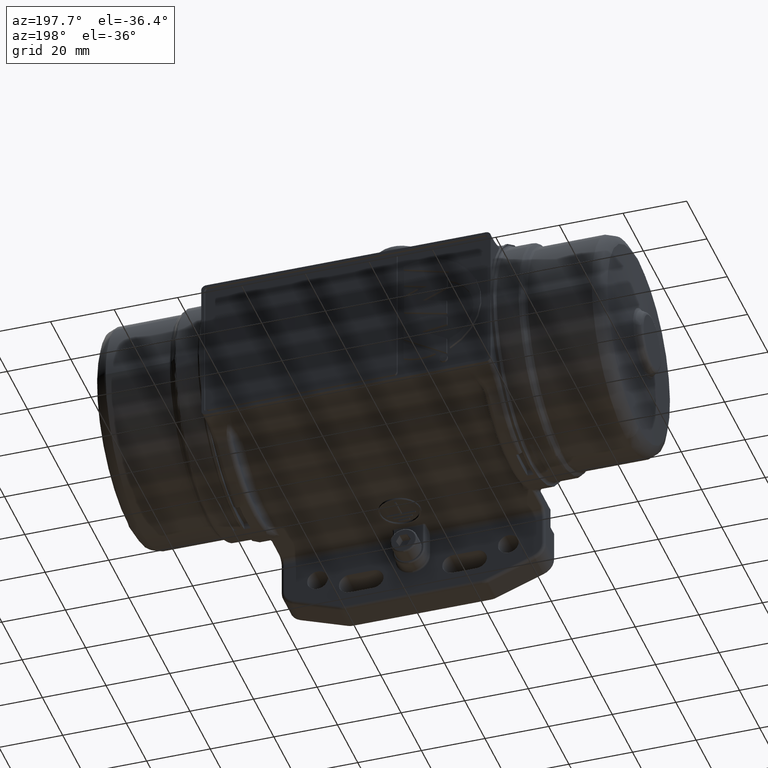
[diagram: clean part render]
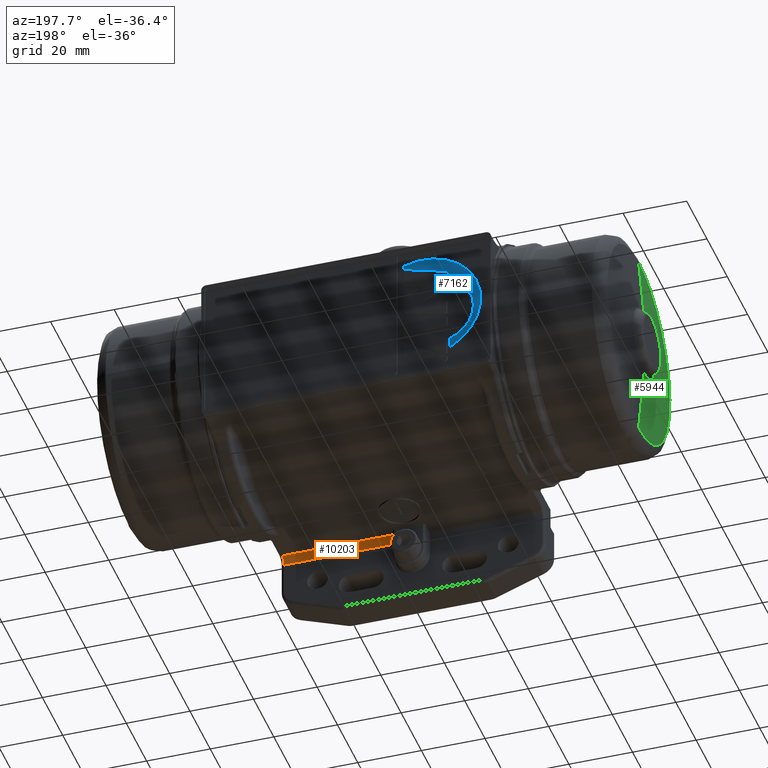
[diagram: same view with three faces highlighted in distinct colors, each labeled with its STEP entity id]
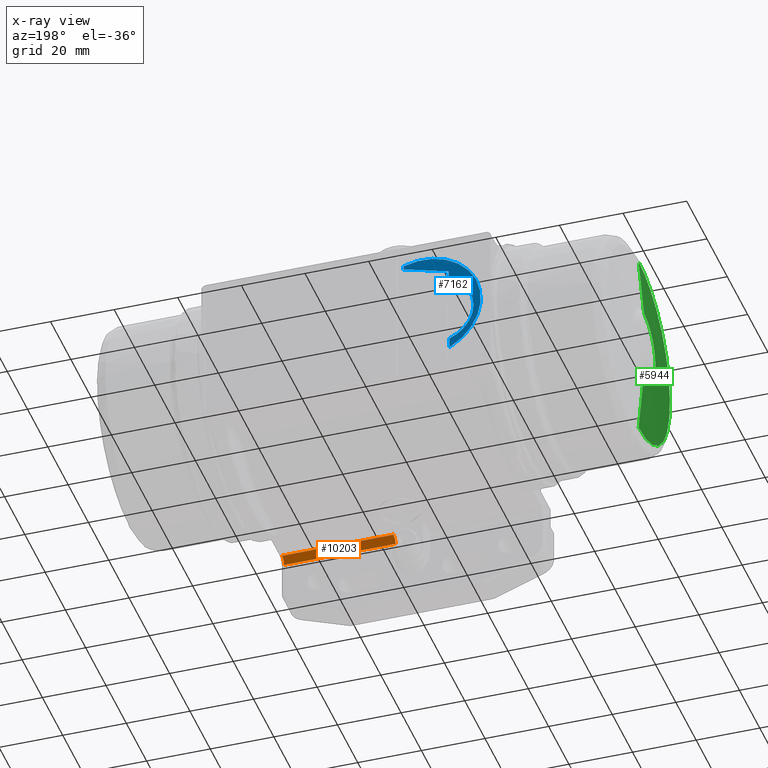
[diagram: x-ray of the same camera — body ghosted, the three highlighted faces saturated]
A machine part, auxiliary view with three faces highlighted in distinct colors.
The next image is the same camera in x-ray (body ghosted, the three faces saturated) — at least one of them is partly hidden behind the body in this view.
Their STEP definitions:

[orange] entity #10203 — the highlighted cylindrical surface (edge-blend (fillet) strip) has radius 2 mm, axis along (-1, 0, 0).
#6435 = VERTEX_POINT ( 'NONE', #22136 ) ;
#6444 = EDGE_CURVE ( 'NONE', #6435, #6445, #22180, .T. ) ;
#6445 = VERTEX_POINT ( 'NONE', #22168 ) ;
#9744 = VERTEX_POINT ( 'NONE', #29478 ) ;
#9745 = VERTEX_POINT ( 'NONE', #29458 ) ;
#9752 = EDGE_CURVE ( 'NONE', #9744, #9745, #29552, .T. ) ;
#10203 = ADVANCED_FACE ( 'NONE', ( #32037 ), #32126, .F. ) ;
#10205 = ORIENTED_EDGE ( 'NONE', *, *, #6444, .F. ) ;
#10208 = ORIENTED_EDGE ( 'NONE', *, *, #10219, .T. ) ;
#10211 = ORIENTED_EDGE ( 'NONE', *, *, #10228, .T. ) ;
#10218 = ORIENTED_EDGE ( 'NONE', *, *, #9752, .F. ) ;
#10219 = EDGE_CURVE ( 'NONE', #6435, #9745, #32091, .T. ) ;
#10228 = EDGE_CURVE ( 'NONE', #9744, #6445, #32200, .T. ) ;
#10229 = EDGE_LOOP ( 'NONE', ( #10205, #10208, #10218, #10211 ) ) ;
#22136 = CARTESIAN_POINT ( 'NONE',  ( 40.50000000000000000, -27.00000000000000000, -32.50000000000000000 ) ) ;
#22165 = DIRECTION ( 'NONE',  ( -1.000000000000000000, 0.0000000000000000000, 8.360113137237618800E-017 ) ) ;
#22166 = VECTOR ( 'NONE', #22165, 1000.000000000000000 ) ;
#22168 = CARTESIAN_POINT ( 'NONE',  ( 5.500000000000000000, -27.00000000000000000, -32.50000000000000000 ) ) ;
#22179 = CARTESIAN_POINT ( 'NONE',  ( -41.50000000000000000, -27.00000000000000000, -32.50000000000000000 ) ) ;
#22180 = LINE ( 'NONE', #22179, #22166 ) ;
#29458 = CARTESIAN_POINT ( 'NONE',  ( 40.50000000000000000, -29.00000000000000000, -34.50000000000000000 ) ) ;
#29478 = CARTESIAN_POINT ( 'NONE',  ( 5.500000000000000000, -29.00000000000000000, -34.50000000000000000 ) ) ;
#29547 = DIRECTION ( 'NONE',  ( 1.000000000000000000, -0.0000000000000000000, -8.360113137237618800E-017 ) ) ;
#29548 = VECTOR ( 'NONE', #29547, 1000.000000000000000 ) ;
#29550 = CARTESIAN_POINT ( 'NONE',  ( 41.50000000000000000, -29.00000000000000000, -34.50000000000000000 ) ) ;
#29552 = LINE ( 'NONE', #29550, #29548 ) ;
#32037 = FACE_OUTER_BOUND ( 'NONE', #10229, .T. ) ;
#32091 = CIRCLE ( 'NONE', #32148, 2.000000000000001800 ) ;
#32098 = DIRECTION ( 'NONE',  ( 0.0000000000000000000, 0.0000000000000000000, 1.000000000000000000 ) ) ;
#32101 = DIRECTION ( 'NONE',  ( -1.000000000000000000, 0.0000000000000000000, 8.360113137237618800E-017 ) ) ;
#32104 = CARTESIAN_POINT ( 'NONE',  ( -41.50000000000000000, -27.00000000000000000, -34.50000000000000000 ) ) ;
#32106 = AXIS2_PLACEMENT_3D ( 'NONE', #32104, #32101, #32098 ) ;
#32126 = CYLINDRICAL_SURFACE ( 'NONE', #32106, 2.000000000000001800 ) ;
#32145 = DIRECTION ( 'NONE',  ( 0.0000000000000000000, 0.0000000000000000000, 1.000000000000000000 ) ) ;
#32146 = DIRECTION ( 'NONE',  ( 1.000000000000000000, -0.0000000000000000000, -1.261617073437678000E-016 ) ) ;
#32147 = CARTESIAN_POINT ( 'NONE',  ( 40.50000000000000000, -27.00000000000000000, -34.50000000000000000 ) ) ;
#32148 = AXIS2_PLACEMENT_3D ( 'NONE', #32147, #32146, #32145 ) ;
#32196 = DIRECTION ( 'NONE',  ( -4.336808689942021700E-016, 1.000000000000000000, 0.0000000000000000000 ) ) ;
#32197 = DIRECTION ( 'NONE',  ( -1.000000000000000000, -3.854941057726240100E-016, -0.0000000000000000000 ) ) ;
#32198 = CARTESIAN_POINT ( 'NONE',  ( 5.500000000000000000, -27.00000000000000000, -34.50000000000000000 ) ) ;
#32200 = CIRCLE ( 'NONE', #32206, 1.999999999999998200 ) ;
#32206 = AXIS2_PLACEMENT_3D ( 'NONE', #32198, #32197, #32196 ) ;

[blue] entity #7162 — the highlighted planar face has unit normal (0, -1, 0).
#7074 = EDGE_CURVE ( 'NONE', #7111, #7129, #25285, .T. ) ;
#7108 = EDGE_CURVE ( 'NONE', #7129, #7184, #25478, .T. ) ;
#7109 = EDGE_CURVE ( 'NONE', #7184, #7171, #25522, .T. ) ;
#7110 = ORIENTED_EDGE ( 'NONE', *, *, #7113, .T. ) ;
#7111 = VERTEX_POINT ( 'NONE', #25497 ) ;
#7113 = EDGE_CURVE ( 'NONE', #7126, #7111, #25565, .T. ) ;
#7126 = VERTEX_POINT ( 'NONE', #25683 ) ;
#7127 = EDGE_CURVE ( 'NONE', #7128, #7126, #25692, .T. ) ;
#7128 = VERTEX_POINT ( 'NONE', #25660 ) ;
#7129 = VERTEX_POINT ( 'NONE', #25656 ) ;
#7151 = ORIENTED_EDGE ( 'NONE', *, *, #7159, .T. ) ;
#7159 = EDGE_CURVE ( 'NONE', #7171, #7128, #25834, .T. ) ;
#7162 = ADVANCED_FACE ( 'NONE', ( #25816 ), #25815, .F. ) ;
#7163 = ORIENTED_EDGE ( 'NONE', *, *, #7109, .T. ) ;
#7164 = ORIENTED_EDGE ( 'NONE', *, *, #7074, .T. ) ;
#7166 = ORIENTED_EDGE ( 'NONE', *, *, #7108, .T. ) ;
#7171 = VERTEX_POINT ( 'NONE', #25954 ) ;
#7173 = EDGE_LOOP ( 'NONE', ( #7175, #7110, #7164, #7166, #7163, #7151 ) ) ;
#7175 = ORIENTED_EDGE ( 'NONE', *, *, #7127, .T. ) ;
#7184 = VERTEX_POINT ( 'NONE', #25933 ) ;
#25284 = CARTESIAN_POINT ( 'NONE',  ( -18.12676647368294900, 37.00000000000000000, 15.95603953913534800 ) ) ;
#25285 = LINE ( 'NONE', #25284, #25345 ) ;
#25343 = DIRECTION ( 'NONE',  ( -0.9641079690222366100, 0.0000000000000000000, -0.2655104970953466900 ) ) ;
#25345 = VECTOR ( 'NONE', #25343, 1000.000000000000000 ) ;
#25476 = VECTOR ( 'NONE', #25567, 1000.000000000000000 ) ;
#25477 = CARTESIAN_POINT ( 'NONE',  ( -32.29337868949289700, 37.00000000000000000, 12.05462561825327900 ) ) ;
#25478 = LINE ( 'NONE', #25477, #25476 ) ;
#25485 = AXIS2_PLACEMENT_3D ( 'NONE', #25574, #25558, #25557 ) ;
#25497 = CARTESIAN_POINT ( 'NONE',  ( -18.12676647368294900, 37.00000000000000000, 15.95603953913534800 ) ) ;
#25522 = CIRCLE ( 'NONE', #25485, 11.40974120109419900 ) ;
#25553 = VECTOR ( 'NONE', #25560, 1000.000000000000000 ) ;
#25557 = DIRECTION ( 'NONE',  ( 0.0000000000000000000, 0.0000000000000000000, -1.000000000000000000 ) ) ;
#25558 = DIRECTION ( 'NONE',  ( 0.0000000000000000000, -1.000000000000000000, 0.0000000000000000000 ) ) ;
#25560 = DIRECTION ( 'NONE',  ( -1.823024802855260100E-014, 0.0000000000000000000, -1.000000000000000000 ) ) ;
#25561 = CARTESIAN_POINT ( 'NONE',  ( -18.12676647368294900, 37.00000000000000000, 17.09791548504230000 ) ) ;
#25565 = LINE ( 'NONE', #25561, #25553 ) ;
#25567 = DIRECTION ( 'NONE',  ( -1.807285864792390100E-014, 0.0000000000000000000, -1.000000000000000000 ) ) ;
#25574 = CARTESIAN_POINT ( 'NONE',  ( -28.68153390190025200, 37.00000000000000000, -2.223808902864350000 ) ) ;
#25656 = CARTESIAN_POINT ( 'NONE',  ( -32.29337868949289700, 37.00000000000000000, 12.05462561825327900 ) ) ;
#25660 = CARTESIAN_POINT ( 'NONE',  ( -32.57861346142460200, 37.00000000000000000, -16.22038037619089600 ) ) ;
#25661 = DIRECTION ( 'NONE',  ( 0.0000000000000000000, 0.0000000000000000000, -1.000000000000000000 ) ) ;
#25663 = DIRECTION ( 'NONE',  ( 0.0000000000000000000, 1.000000000000000000, 0.0000000000000000000 ) ) ;
#25664 = CARTESIAN_POINT ( 'NONE',  ( -24.16864903584405200, 37.00000000000000000, -0.07481148465718351300 ) ) ;
#25666 = AXIS2_PLACEMENT_3D ( 'NONE', #25664, #25663, #25661 ) ;
#25683 = CARTESIAN_POINT ( 'NONE',  ( -18.12676647368294900, 37.00000000000000000, 17.09791548504230000 ) ) ;
#25692 = CIRCLE ( 'NONE', #25666, 18.20458449047360400 ) ;
#25815 = PLANE ( 'NONE',  #25913 ) ;
#25816 = FACE_OUTER_BOUND ( 'NONE', #7173, .T. ) ;
#25834 = LINE ( 'NONE', #25925, #25917 ) ;
#25865 = DIRECTION ( 'NONE',  ( 0.0000000000000000000, 0.0000000000000000000, -1.000000000000000000 ) ) ;
#25867 = DIRECTION ( 'NONE',  ( 0.0000000000000000000, -1.000000000000000000, 0.0000000000000000000 ) ) ;
#25869 = CARTESIAN_POINT ( 'NONE',  ( -24.16864903584405200, 37.00000000000000000, -0.07481148465718351300 ) ) ;
#25913 = AXIS2_PLACEMENT_3D ( 'NONE', #25869, #25867, #25865 ) ;
#25917 = VECTOR ( 'NONE', #25923, 1000.000000000000000 ) ;
#25923 = DIRECTION ( 'NONE',  ( -1.696032247060260300E-014, 0.0000000000000000000, -1.000000000000000000 ) ) ;
#25925 = CARTESIAN_POINT ( 'NONE',  ( -32.57861346142455300, 37.00000000000000000, -12.94737944549070000 ) ) ;
#25933 = CARTESIAN_POINT ( 'NONE',  ( -32.29337868949300400, 37.00000000000000000, 8.599165342059569300 ) ) ;
#25954 = CARTESIAN_POINT ( 'NONE',  ( -32.57861346142455300, 37.00000000000000000, -12.94737944549073900 ) ) ;

[green] entity #5944 — the highlighted conical surface has half-angle 85 deg.
#5870 = VERTEX_POINT ( 'NONE', #19493 ) ;
#5876 = ORIENTED_EDGE ( 'NONE', *, *, #5943, .T. ) ;
#5884 = VERTEX_POINT ( 'NONE', #19797 ) ;
#5900 = VERTEX_POINT ( 'NONE', #20101 ) ;
#5922 = EDGE_CURVE ( 'NONE', #5945, #5937, #20226, .T. ) ;
#5923 = ORIENTED_EDGE ( 'NONE', *, *, #5932, .T. ) ;
#5924 = ORIENTED_EDGE ( 'NONE', *, *, #5925, .T. ) ;
#5925 = EDGE_CURVE ( 'NONE', #5937, #5947, #20222, .T. ) ;
#5929 = ORIENTED_EDGE ( 'NONE', *, *, #5936, .T. ) ;
#5931 = ORIENTED_EDGE ( 'NONE', *, *, #5951, .F. ) ;
#5932 = EDGE_CURVE ( 'NONE', #5870, #5900, #20216, .T. ) ;
#5936 = EDGE_CURVE ( 'NONE', #5884, #5870, #20200, .T. ) ;
#5937 = VERTEX_POINT ( 'NONE', #20201 ) ;
#5940 = EDGE_LOOP ( 'NONE', ( #5876, #5946, #5924, #5931, #5929, #5923 ) ) ;
#5943 = EDGE_CURVE ( 'NONE', #5900, #5945, #20268, .T. ) ;
#5944 = ADVANCED_FACE ( 'NONE', ( #20217 ), #20269, .T. ) ;
#5945 = VERTEX_POINT ( 'NONE', #20270 ) ;
#5946 = ORIENTED_EDGE ( 'NONE', *, *, #5922, .T. ) ;
#5947 = VERTEX_POINT ( 'NONE', #20213 ) ;
#5951 = EDGE_CURVE ( 'NONE', #5884, #5947, #20329, .T. ) ;
#19493 = CARTESIAN_POINT ( 'NONE',  ( -81.95462959216169500, 3.469481516548829200E-015, -10.96196180509426000 ) ) ;
#19797 = CARTESIAN_POINT ( 'NONE',  ( -81.95462959209839900, -0.005764411179795189700, 10.96196029262336000 ) ) ;
#20101 = CARTESIAN_POINT ( 'NONE',  ( -80.21629720937450300, -5.204135863335199900E-015, -30.83119186067429900 ) ) ;
#20141 = VECTOR ( 'NONE', #20203, 1000.000000000000000 ) ;
#20200 = B_SPLINE_CURVE_WITH_KNOTS ( 'NONE', 3,
 ( #20267, #20266, #20265, #20264, #20263, #20262, #20261, #20260, #20259, #20258, #20257, #20256, #20255, #20254, #20253, #20252, #20251, #20250 ),
 .UNSPECIFIED., .F., .F.,
 ( 4, 2, 2, 2, 2, 2, 2, 2, 4 ),
 ( 0.0000000000000000000, 0.1250000000000000000, 0.2500000000000000000, 0.3750000000000000000, 0.5000000000000000000, 0.6250000000000000000, 0.7500000000000000000, 0.8750000000000000000, 1.000000000000000000 ),
 .UNSPECIFIED. ) ;
#20201 = CARTESIAN_POINT ( 'NONE',  ( -80.21629720906580000, -5.811323609957710500E-012, 30.83119186049519900 ) ) ;
#20202 = AXIS2_PLACEMENT_3D ( 'NONE', #20218, #20272, #20271 ) ;
#20203 = DIRECTION ( 'NONE',  ( 0.08715574274728699100, 5.605110360095149100E-017, -0.9961946980917780700 ) ) ;
#20213 = CARTESIAN_POINT ( 'NONE',  ( -81.95462959214079000, -1.559516370338555100E-012, 10.96196180581291900 ) ) ;
#20214 = CARTESIAN_POINT ( 'NONE',  ( -80.21629720906169300, -3.469412387358394800E-015, -30.83119186602600300 ) ) ;
#20216 = LINE ( 'NONE', #20214, #20141 ) ;
#20217 = FACE_OUTER_BOUND ( 'NONE', #5940, .T. ) ;
#20218 = CARTESIAN_POINT ( 'NONE',  ( -80.21629720906530300, -3.469412387358394800E-015, -2.483263984956054900E-020 ) ) ;
#20219 = DIRECTION ( 'NONE',  ( -0.08715574274728610200, 2.343272740160079900E-013, -0.9961946980917781900 ) ) ;
#20220 = VECTOR ( 'NONE', #20219, 999.9999999999998900 ) ;
#20221 = CARTESIAN_POINT ( 'NONE',  ( -80.21629720906169300, -7.256348265446390000E-012, 30.83119186602600300 ) ) ;
#20222 = LINE ( 'NONE', #20221, #20220 ) ;
#20223 = DIRECTION ( 'NONE',  ( 0.0000000000000000000, 0.0000000000000000000, -1.000000000000000000 ) ) ;
#20224 = DIRECTION ( 'NONE',  ( -1.000000000000000000, -2.250608388436210300E-016, -2.250608388436210300E-016 ) ) ;
#20225 = AXIS2_PLACEMENT_3D ( 'NONE', #20229, #20224, #20223 ) ;
#20226 = CIRCLE ( 'NONE', #20225, 30.83119186598505100 ) ;
#20229 = CARTESIAN_POINT ( 'NONE',  ( -80.21629720906530300, -3.469412387358394800E-015, -2.483263984956054900E-020 ) ) ;
#20230 = CARTESIAN_POINT ( 'NONE',  ( -80.21629720968343200, -30.63357789817762700, 4.027013907026204500 ) ) ;
#20231 = CARTESIAN_POINT ( 'NONE',  ( -80.21629720968343200, -30.83172126579667000, 2.009452572050682000 ) ) ;
#20232 = CARTESIAN_POINT ( 'NONE',  ( -80.21629720968344700, -30.83066032064914800, -2.025665333624902400 ) ) ;
#20233 = CARTESIAN_POINT ( 'NONE',  ( -80.21629720968343200, -30.63145603409899900, -4.043122194809251700 ) ) ;
#20234 = CARTESIAN_POINT ( 'NONE',  ( -80.21629720968344700, -29.84333308666680300, -8.000525365834290500 ) ) ;
#20235 = CARTESIAN_POINT ( 'NONE',  ( -80.21629720968343200, -29.25443390064501200, -9.940373886524151100 ) ) ;
#20236 = CARTESIAN_POINT ( 'NONE',  ( -80.21629720968344700, -27.70952596801771500, -13.66803228262397600 ) ) ;
#20237 = CARTESIAN_POINT ( 'NONE',  ( -80.21629720968343200, -26.75355539675809900, -15.45575004597624000 ) ) ;
#20238 = CARTESIAN_POINT ( 'NONE',  ( -80.21629720968341800, -24.51121261463522700, -18.81045964380578900 ) ) ;
#20239 = CARTESIAN_POINT ( 'NONE',  ( -80.21629720968343200, -23.22489581303584000, -20.37736858195211600 ) ) ;
#20240 = CARTESIAN_POINT ( 'NONE',  ( -80.21629720968343200, -20.37126140431964700, -23.23025278915354300 ) ) ;
#20241 = CARTESIAN_POINT ( 'NONE',  ( -80.21629720968341800, -18.80401431174825800, -24.51615756220100900 ) ) ;
#20242 = CARTESIAN_POINT ( 'NONE',  ( -80.21629720968343200, -15.44871525537856100, -26.75761822003843100 ) ) ;
#20243 = CARTESIAN_POINT ( 'NONE',  ( -80.21629720968341800, -13.66074620247699700, -27.71311871736216400 ) ) ;
#20244 = CARTESIAN_POINT ( 'NONE',  ( -80.21629720968343200, -9.932681735814398400, -29.25704649116376600 ) ) ;
#20245 = CARTESIAN_POINT ( 'NONE',  ( -80.21629720968339000, -7.992678444145274100, -29.84543561651587100 ) ) ;
#20246 = CARTESIAN_POINT ( 'NONE',  ( -80.21629720968343200, -4.035068190391939400, -30.63251802496795400 ) ) ;
#20247 = CARTESIAN_POINT ( 'NONE',  ( -80.21629720968341800, -2.017559022575687900, -30.83119185891979800 ) ) ;
#20248 = CARTESIAN_POINT ( 'NONE',  ( -80.21629720937450300, -5.204135863335199900E-015, -30.83119186067429900 ) ) ;
#20250 = CARTESIAN_POINT ( 'NONE',  ( -81.95462959216169500, 3.469481516548829200E-015, -10.96196180509426000 ) ) ;
#20251 = CARTESIAN_POINT ( 'NONE',  ( -81.95462959205674700, -1.434677261490459700, -10.96196180872352400 ) ) ;
#20252 = CARTESIAN_POINT ( 'NONE',  ( -81.95462959205674700, -2.868790415204367100, -10.67674796434675100 ) ) ;
#20253 = CARTESIAN_POINT ( 'NONE',  ( -81.95462959205674700, -5.519800502068166600, -9.578867780584452900 ) ) ;
#20254 = CARTESIAN_POINT ( 'NONE',  ( -81.95462959205674700, -6.735655071582708200, -8.766633122083590000 ) ) ;
#20255 = CARTESIAN_POINT ( 'NONE',  ( -81.95462959205674700, -8.764861827360862300, -6.737959831271136400 ) ) ;
#20256 = CARTESIAN_POINT ( 'NONE',  ( -81.95462959205674700, -9.577416139885210500, -5.522318862943104800 ) ) ;
#20257 = CARTESIAN_POINT ( 'NONE',  ( -81.95462959205674700, -10.67599331023582300, -2.871597531053235600 ) ) ;
#20258 = CARTESIAN_POINT ( 'NONE',  ( -81.95462959205674700, -10.96158421312585300, -1.437559417589761000 ) ) ;
#20259 = CARTESIAN_POINT ( 'NONE',  ( -81.95462959205674700, -10.96233864650886300, 1.431795006210445900 ) ) ;
#20260 = CARTESIAN_POINT ( 'NONE',  ( -81.95462959205674700, -10.67750188036248100, 2.865983101032984600 ) ) ;
#20261 = CARTESIAN_POINT ( 'NONE',  ( -81.95462959205674700, -9.580318759086123800, 5.517281759603501500 ) ) ;
#20262 = CARTESIAN_POINT ( 'NONE',  ( -81.95462959205674700, -8.768403810759386000, 6.733349846251207400 ) ) ;
#20263 = CARTESIAN_POINT ( 'NONE',  ( -81.95462959205674700, -6.740264125156999200, 8.763089926713775000 ) ) ;
#20264 = CARTESIAN_POINT ( 'NONE',  ( -81.95462959205673300, -5.524836842054057200, 9.575963837088828300 ) ) ;
#20265 = CARTESIAN_POINT ( 'NONE',  ( -81.95462959205674700, -2.874404448385355200, 10.67523791808189200 ) ) ;
#20266 = CARTESIAN_POINT ( 'NONE',  ( -81.95462959205674700, -1.440441474308929100, 10.96120585974196400 ) ) ;
#20267 = CARTESIAN_POINT ( 'NONE',  ( -81.95462959209839900, -0.005764411179795189700, 10.96196029262336000 ) ) ;
#20268 = B_SPLINE_CURVE_WITH_KNOTS ( 'NONE', 3,
 ( #20248, #20247, #20246, #20245, #20244, #20243, #20242, #20241, #20240, #20239, #20238, #20237, #20236, #20235, #20234, #20233, #20232, #20231, #20230, #20301, #20300, #20299, #20298, #20297, #20296, #20295, #20294, #20293, #20292, #20291, #20290, #20289, #20288, #20287 ),
 .UNSPECIFIED., .F., .F.,
 ( 4, 2, 2, 2, 2, 2, 2, 2, 2, 2, 2, 2, 2, 2, 2, 2, 4 ),
 ( 0.0000000000000000000, 0.06250000000000000000, 0.1250000000000000000, 0.1875000000000000000, 0.2500000000000000000, 0.3125000000000000000, 0.3749999999999999400, 0.4374999999999998900, 0.4999999999999998300, 0.5624999999999997800, 0.6249999999999997800, 0.6874999999999997800, 0.7499999999999997800, 0.8124999999999997800, 0.8749999999999998900, 0.9375000000000000000, 1.000000000000000000 ),
 .UNSPECIFIED. ) ;
#20269 = CONICAL_SURFACE ( 'NONE', #20202, 30.83119186598505100, 1.483529864195553200 ) ;
#20270 = CARTESIAN_POINT ( 'NONE',  ( -80.21629720918949100, -0.01621276101662455200, 30.83118760177880100 ) ) ;
#20271 = DIRECTION ( 'NONE',  ( 0.0000000000000000000, 0.0000000000000000000, -1.000000000000000000 ) ) ;
#20272 = DIRECTION ( 'NONE',  ( 1.000000000000000000, 2.250608388436210300E-016, 2.250608388436210300E-016 ) ) ;
#20287 = CARTESIAN_POINT ( 'NONE',  ( -80.21629720918949100, -0.01621276101662455200, 30.83118760177880100 ) ) ;
#20288 = CARTESIAN_POINT ( 'NONE',  ( -80.21629720968344700, -2.033771504637448900, 30.83012665102145900 ) ) ;
#20289 = CARTESIAN_POINT ( 'NONE',  ( -80.21629720968343200, -4.051175919720909000, 30.63039192564424300 ) ) ;
#20290 = CARTESIAN_POINT ( 'NONE',  ( -80.21629720968346100, -8.008371734438085800, 29.84122849371573900 ) ) ;
#20291 = CARTESIAN_POINT ( 'NONE',  ( -80.21629720968346100, -9.948065350044791100, 29.25181928773555000 ) ) ;
#20292 = CARTESIAN_POINT ( 'NONE',  ( -80.21629720968344700, -13.67531741788478400, 27.70593130308375200 ) ) ;
#20293 = CARTESIAN_POINT ( 'NONE',  ( -80.21629720968344700, -15.46278376810088600, 26.74949072397558300 ) ) ;
#20294 = CARTESIAN_POINT ( 'NONE',  ( -80.21629720968344700, -18.81690367547559700, 24.50626597258283800 ) ) ;
#20295 = CARTESIAN_POINT ( 'NONE',  ( -80.21629720968343200, -20.38347435087476700, 23.21953723135604300 ) ) ;
#20296 = CARTESIAN_POINT ( 'NONE',  ( -80.21629720968343200, -23.23560815933845100, 20.36515281839995200 ) ) ;
#20297 = CARTESIAN_POINT ( 'NONE',  ( -80.21629720968343200, -24.52110081493803400, 18.79756767974901200 ) ) ;
#20298 = CARTESIAN_POINT ( 'NONE',  ( -80.21629720968343200, -26.76167919353541400, 15.44167939679467200 ) ) ;
#20299 = CARTESIAN_POINT ( 'NONE',  ( -80.21629720968343200, -27.71670955086850800, 13.65345917794802400 ) ) ;
#20300 = CARTESIAN_POINT ( 'NONE',  ( -80.21629720968343200, -29.25965705911104200, 9.924988898447804100 ) ) ;
#20301 = CARTESIAN_POINT ( 'NONE',  ( -80.21629720968341800, -29.84753608311751100, 7.984830969913935500 ) ) ;
#20317 = DIRECTION ( 'NONE',  ( 0.0000000000000000000, 0.0000000000000000000, -1.000000000000000000 ) ) ;
#20318 = DIRECTION ( 'NONE',  ( -1.000000000000000000, -2.250608388436210300E-016, -2.250608388436210300E-016 ) ) ;
#20327 = CARTESIAN_POINT ( 'NONE',  ( -81.95462959226719600, -3.469412387358394800E-015, -2.483263984956054900E-020 ) ) ;
#20328 = AXIS2_PLACEMENT_3D ( 'NONE', #20327, #20318, #20317 ) ;
#20329 = CIRCLE ( 'NONE', #20328, 10.96196180631849900 ) ;